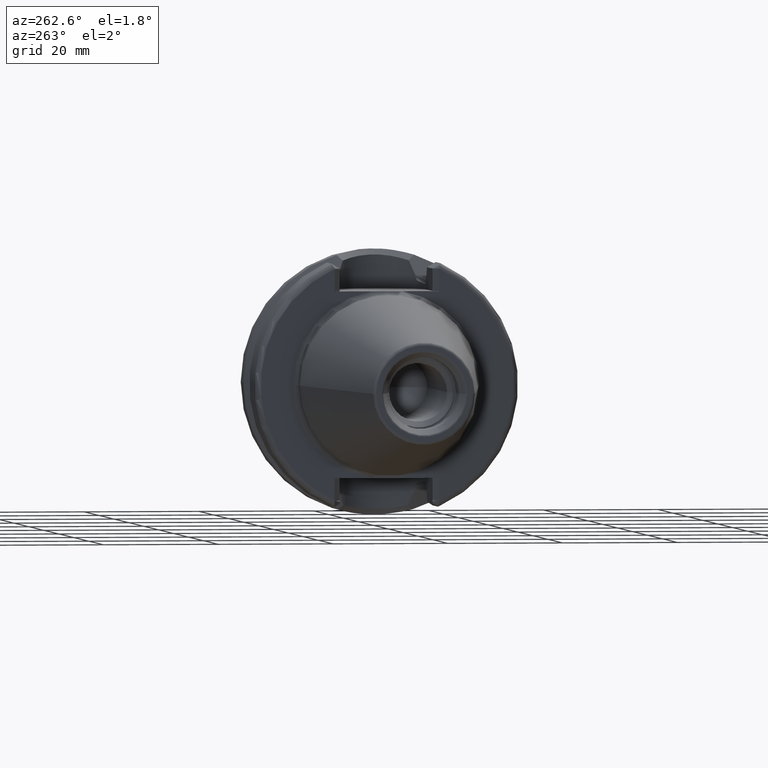
[diagram: clean part render]
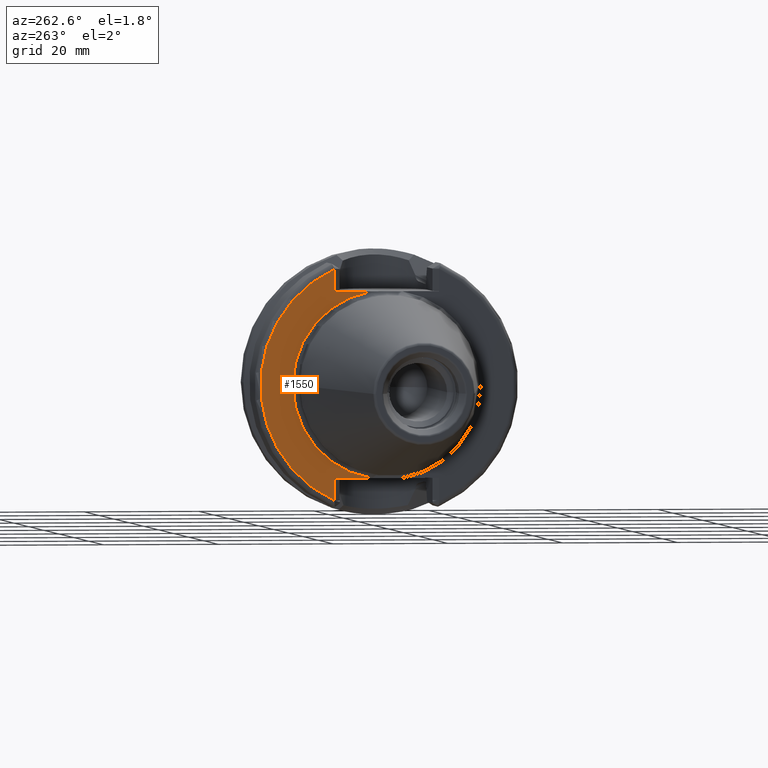
[diagram: same view with one face highlighted and labeled with its STEP entity id]
A machine part, auxiliary view. The second image highlights one B-rep face of the part: STEP entity #1550.
In plain terms, the highlighted planar face has unit normal (1, 0, 0).
Its self-contained STEP definition (entity closure, byte-faithful):
#96=CARTESIAN_POINT('',(2.E0,0.E0,0.E0));
#97=DIRECTION('',(-1.E0,0.E0,0.E0));
#98=DIRECTION('',(0.E0,1.E0,0.E0));
#99=AXIS2_PLACEMENT_3D('',#96,#97,#98);
#127=DIRECTION('',(4.744939476517E-6,4.745345851296E-6,9.999999999775E-1));
#128=VECTOR('',#127,3.871014232028E0);
#129=CARTESIAN_POINT('',(1.999981632272E0,9.094981630699E0,-2.002101423194E1));
#130=LINE('',#129,#128);
#131=DIRECTION('',(-7.287242154960E-6,-7.289057609279E-6,9.999999999469E-1));
#132=VECTOR('',#131,3.871026254550E0);
#133=CARTESIAN_POINT('',(2.E0,9.095E0,1.615E1));
#134=LINE('',#133,#132);
#598=CARTESIAN_POINT('',(2.E0,0.E0,0.E0));
#599=DIRECTION('',(-1.E0,0.E0,0.E0));
#600=DIRECTION('',(0.E0,4.135972556779E-1,9.104599442566E-1));
#601=AXIS2_PLACEMENT_3D('',#598,#599,#600);
#674=DIRECTION('',(0.E0,1.E0,0.E0));
#675=VECTOR('',#674,6.389796680469E0);
#676=CARTESIAN_POINT('',(2.E0,2.705203319531E0,1.615E1));
#677=LINE('',#676,#675);
#695=CARTESIAN_POINT('',(2.E0,0.E0,0.E0));
#696=DIRECTION('',(1.E0,0.E0,0.E0));
#697=DIRECTION('',(0.E0,1.E0,0.E0));
#698=AXIS2_PLACEMENT_3D('',#695,#696,#697);
#732=DIRECTION('',(0.E0,-1.E0,0.E0));
#733=VECTOR('',#732,6.389796680469E0);
#734=CARTESIAN_POINT('',(2.E0,9.095E0,-1.615E1));
#735=LINE('',#734,#733);
#1210=CARTESIAN_POINT('',(2.E0,1.6375E1,0.E0));
#1212=VERTEX_POINT('',#1210);
#1280=CARTESIAN_POINT('',(2.E0,2.705203319531E0,1.615E1));
#1281=VERTEX_POINT('',#1280);
#1288=CARTESIAN_POINT('',(2.E0,2.705203319531E0,-1.615E1));
#1289=VERTEX_POINT('',#1288);
#1322=CARTESIAN_POINT('',(2.E0,9.095023821277E0,2.002100501198E1));
#1324=VERTEX_POINT('',#1322);
#1326=CARTESIAN_POINT('',(2.E0,9.095E0,1.615E1));
#1327=VERTEX_POINT('',#1326);
#1336=CARTESIAN_POINT('',(1.999981632272E0,9.094981630699E0,-2.002101423194E1));
#1337=CARTESIAN_POINT('',(2.E0,9.095E0,-1.615E1));
#1338=VERTEX_POINT('',#1336);
#1339=VERTEX_POINT('',#1337);
#1530=CARTESIAN_POINT('',(2.E0,0.E0,0.E0));
#1531=DIRECTION('',(1.E0,0.E0,0.E0));
#1532=DIRECTION('',(0.E0,-1.E0,0.E0));
#1533=AXIS2_PLACEMENT_3D('',#1530,#1531,#1532);
#1534=PLANE('',#1533);
#1536=ORIENTED_EDGE('',*,*,#1535,.F.);
#1538=ORIENTED_EDGE('',*,*,#1537,.F.);
#1540=ORIENTED_EDGE('',*,*,#1539,.F.);
#1542=ORIENTED_EDGE('',*,*,#1541,.F.);
#1544=ORIENTED_EDGE('',*,*,#1543,.F.);
#1545=ORIENTED_EDGE('',*,*,#1516,.T.);
#1547=ORIENTED_EDGE('',*,*,#1546,.F.);
#1548=EDGE_LOOP('',(#1536,#1538,#1540,#1542,#1544,#1545,#1547));
#1549=FACE_OUTER_BOUND('',#1548,.F.);
#1550=ADVANCED_FACE('',(#1549),#1534,.F.);
#100=CIRCLE('',#99,1.6375E1);
#602=CIRCLE('',#601,2.199E1);
#699=CIRCLE('',#698,1.6375E1);
#1516=EDGE_CURVE('',#1212,#1289,#100,.T.);
#1535=EDGE_CURVE('',#1338,#1339,#130,.T.);
#1537=EDGE_CURVE('',#1324,#1338,#602,.T.);
#1539=EDGE_CURVE('',#1327,#1324,#134,.T.);
#1541=EDGE_CURVE('',#1281,#1327,#677,.T.);
#1543=EDGE_CURVE('',#1212,#1281,#699,.T.);
#1546=EDGE_CURVE('',#1339,#1289,#735,.T.);